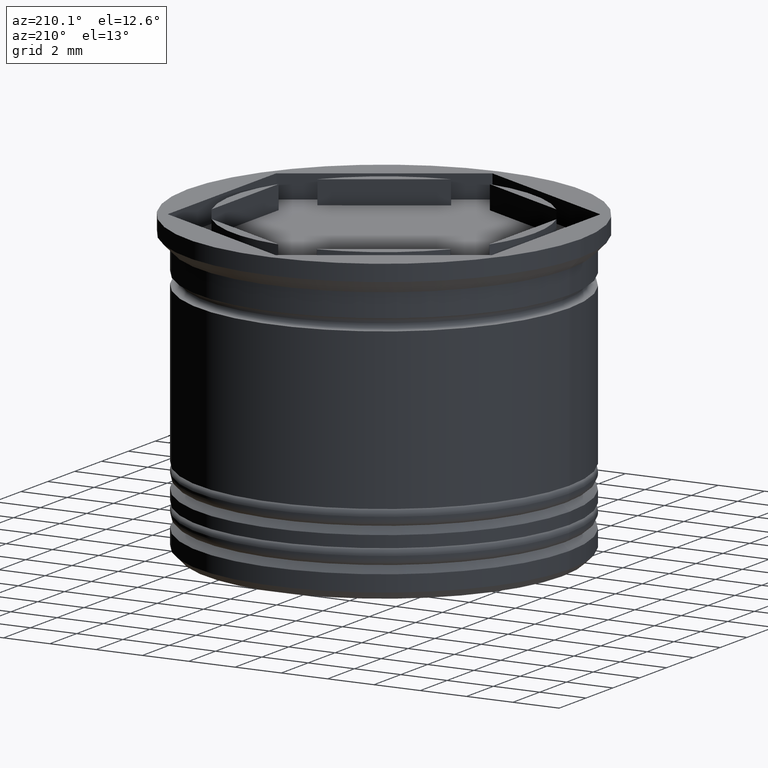
[diagram: clean part render]
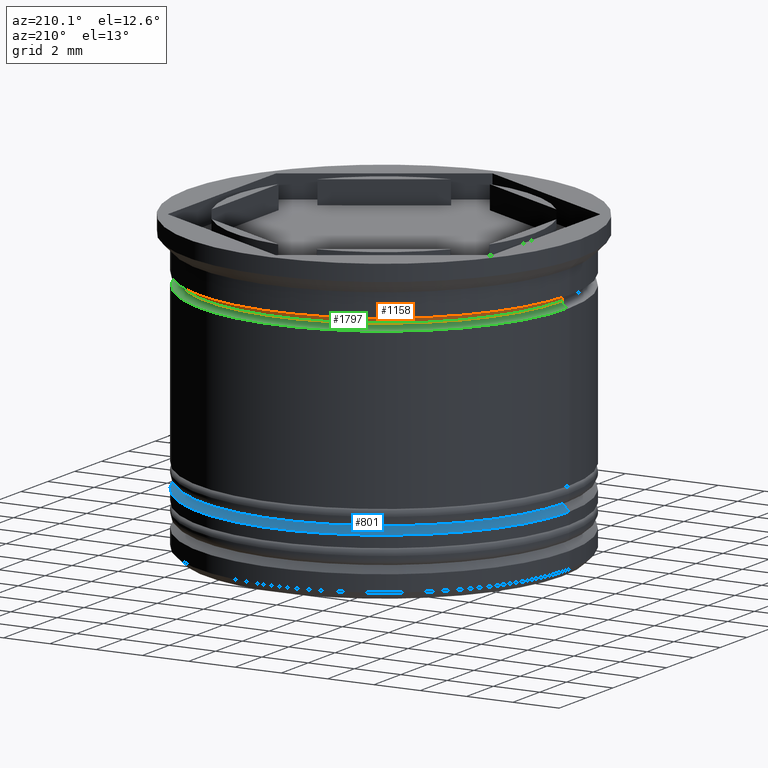
[diagram: same view with three faces highlighted in distinct colors, each labeled with its STEP entity id]
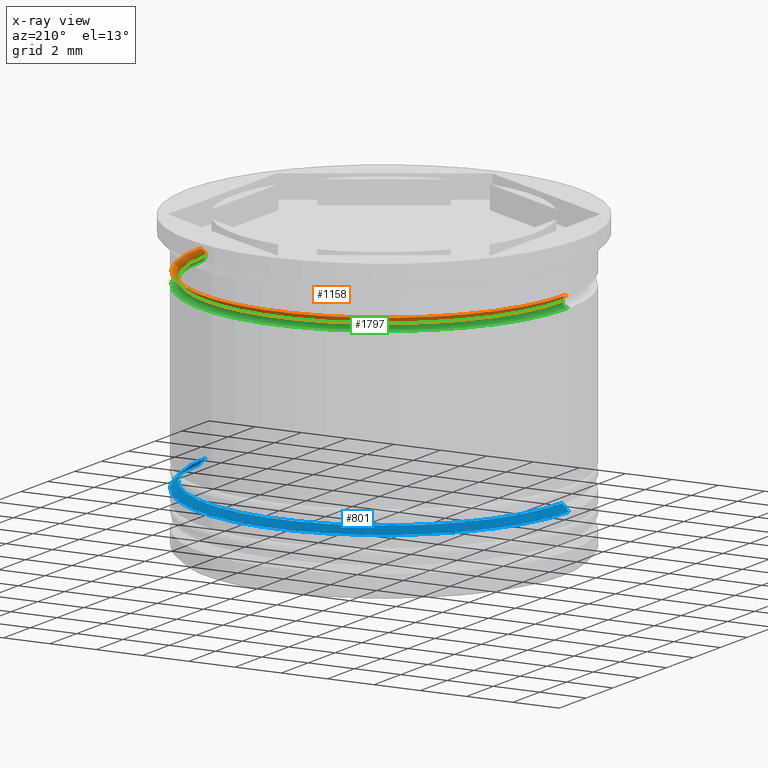
[diagram: x-ray of the same camera — body ghosted, the three highlighted faces saturated]
A machine part, auxiliary view with three faces highlighted in distinct colors.
The next image is the same camera in x-ray (body ghosted, the three faces saturated) — at least one of them is partly hidden behind the body in this view.
Their STEP definitions:

[orange] entity #1158 — the highlighted toroidal blend (fillet) surface has major radius 7.95 mm and minor (blend) radius 0.25 mm.
#46 = CIRCLE ( 'NONE', #1182, 7.700000000000001954 ) ;
#66 = DIRECTION ( 'NONE',  ( 0.000000000000000000, -1.000000000000000000, 0.000000000000000000 ) ) ;
#87 = DIRECTION ( 'NONE',  ( 1.000000000000000000, 0.000000000000000000, 0.000000000000000000 ) ) ;
#126 = DIRECTION ( 'NONE',  ( 1.000000000000000000, 0.000000000000000000, 0.000000000000000000 ) ) ;
#218 = EDGE_CURVE ( 'NONE', #1854, #510, #1303, .T. ) ;
#297 = CARTESIAN_POINT ( 'NONE',  ( -7.700000000000001954, 9.429780353434621002E-16, -2.449999999999999734 ) ) ;
#324 = ORIENTED_EDGE ( 'NONE', *, *, #1086, .F. ) ;
#330 = ORIENTED_EDGE ( 'NONE', *, *, #646, .T. ) ;
#370 = CARTESIAN_POINT ( 'NONE',  ( 0.000000000000000000, 0.000000000000000000, -2.199999999999999734 ) ) ;
#387 = FACE_OUTER_BOUND ( 'NONE', #1090, .T. ) ;
#510 = VERTEX_POINT ( 'NONE', #773 ) ;
#536 = AXIS2_PLACEMENT_3D ( 'NONE', #1896, #1118, #651 ) ;
#559 = ORIENTED_EDGE ( 'NONE', *, *, #1579, .T. ) ;
#646 = EDGE_CURVE ( 'NONE', #1854, #1262, #947, .T. ) ;
#651 = DIRECTION ( 'NONE',  ( -1.000000000000000000, 1.224646799147357151E-16, 0.000000000000000000 ) ) ;
#653 = DIRECTION ( 'NONE',  ( 0.000000000000000000, 0.000000000000000000, -1.000000000000000000 ) ) ;
#773 = CARTESIAN_POINT ( 'NONE',  ( -7.950000000000001954, 9.735942053221462816E-16, -2.199999999999999734 ) ) ;
#868 = DIRECTION ( 'NONE',  ( 1.000000000000000000, 0.000000000000000000, 0.000000000000000000 ) ) ;
#921 = AXIS2_PLACEMENT_3D ( 'NONE', #1598, #66, #653 ) ;
#947 = CIRCLE ( 'NONE', #921, 0.2500000000000006661 ) ;
#1000 = DIRECTION ( 'NONE',  ( -0.000000000000000000, -0.000000000000000000, 1.000000000000000000 ) ) ;
#1051 = AXIS2_PLACEMENT_3D ( 'NONE', #1957, #1623, #868 ) ;
#1086 = EDGE_CURVE ( 'NONE', #510, #1287, #1690, .T. ) ;
#1090 = EDGE_LOOP ( 'NONE', ( #330, #559, #324, #1331 ) ) ;
#1118 = DIRECTION ( 'NONE',  ( 1.224646799147353207E-16, 1.000000000000000000, 0.000000000000000000 ) ) ;
#1147 = CARTESIAN_POINT ( 'NONE',  ( 0.000000000000000000, 0.000000000000000000, -2.449999999999999734 ) ) ;
#1158 = ADVANCED_FACE ( 'NONE', ( #387 ), #1181, .F. ) ;
#1181 = TOROIDAL_SURFACE ( 'NONE', #1051, 7.950000000000001954, 0.2500000000000004996 ) ;
#1182 = AXIS2_PLACEMENT_3D ( 'NONE', #1147, #1000, #126 ) ;
#1262 = VERTEX_POINT ( 'NONE', #1338 ) ;
#1267 = CARTESIAN_POINT ( 'NONE',  ( 7.950000000000001954, 0.000000000000000000, -2.199999999999999734 ) ) ;
#1287 = VERTEX_POINT ( 'NONE', #297 ) ;
#1303 = CIRCLE ( 'NONE', #1813, 7.950000000000001954 ) ;
#1331 = ORIENTED_EDGE ( 'NONE', *, *, #218, .F. ) ;
#1338 = CARTESIAN_POINT ( 'NONE',  ( 7.700000000000001954, 0.000000000000000000, -2.449999999999999734 ) ) ;
#1579 = EDGE_CURVE ( 'NONE', #1262, #1287, #46, .T. ) ;
#1598 = CARTESIAN_POINT ( 'NONE',  ( 7.950000000000001954, 0.000000000000000000, -2.449999999999999734 ) ) ;
#1623 = DIRECTION ( 'NONE',  ( -0.000000000000000000, -0.000000000000000000, 1.000000000000000000 ) ) ;
#1690 = CIRCLE ( 'NONE', #536, 0.2500000000000002220 ) ;
#1735 = DIRECTION ( 'NONE',  ( -0.000000000000000000, -0.000000000000000000, 1.000000000000000000 ) ) ;
#1813 = AXIS2_PLACEMENT_3D ( 'NONE', #370, #1735, #87 ) ;
#1854 = VERTEX_POINT ( 'NONE', #1267 ) ;
#1896 = CARTESIAN_POINT ( 'NONE',  ( -7.950000000000001954, 9.735942053221460844E-16, -2.449999999999999734 ) ) ;
#1957 = CARTESIAN_POINT ( 'NONE',  ( 0.000000000000000000, 0.000000000000000000, -2.449999999999999734 ) ) ;

[blue] entity #801 — the highlighted conical surface has half-angle 45 deg.
#72 = DIRECTION ( 'NONE',  ( -1.000000000000000000, 0.000000000000000000, 0.000000000000000000 ) ) ;
#125 = DIRECTION ( 'NONE',  ( -1.000000000000000000, 0.000000000000000000, 0.000000000000000000 ) ) ;
#147 = CARTESIAN_POINT ( 'NONE',  ( 0.000000000000000000, 0.000000000000000000, -10.20000000000000817 ) ) ;
#157 = EDGE_CURVE ( 'NONE', #1529, #1002, #709, .T. ) ;
#174 = AXIS2_PLACEMENT_3D ( 'NONE', #1519, #727, #125 ) ;
#249 = CARTESIAN_POINT ( 'NONE',  ( 8.000000000000000000, 0.000000000000000000, -10.50000000000000355 ) ) ;
#323 = ORIENTED_EDGE ( 'NONE', *, *, #157, .F. ) ;
#335 = AXIS2_PLACEMENT_3D ( 'NONE', #147, #928, #1842 ) ;
#398 = ORIENTED_EDGE ( 'NONE', *, *, #1990, .F. ) ;
#456 = CARTESIAN_POINT ( 'NONE',  ( 7.499999999999991118, 9.184850993605138084E-16, -10.00000000000000000 ) ) ;
#508 = EDGE_CURVE ( 'NONE', #1096, #1529, #1103, .T. ) ;
#632 = CARTESIAN_POINT ( 'NONE',  ( -8.000000000000000000, 9.797174393178825657E-16, -10.50000000000000355 ) ) ;
#643 = LINE ( 'NONE', #456, #1944 ) ;
#709 = LINE ( 'NONE', #1900, #1970 ) ;
#727 = DIRECTION ( 'NONE',  ( 0.000000000000000000, 0.000000000000000000, -1.000000000000000000 ) ) ;
#790 = VERTEX_POINT ( 'NONE', #249 ) ;
#796 = AXIS2_PLACEMENT_3D ( 'NONE', #985, #1134, #72 ) ;
#801 = ADVANCED_FACE ( 'NONE', ( #1332 ), #887, .T. ) ;
#834 = DIRECTION ( 'NONE',  ( -0.7071067811865512365, 0.000000000000000000, -0.7071067811865439090 ) ) ;
#887 = CONICAL_SURFACE ( 'NONE', #174, 7.499999999999991118, 0.7853981633974533860 ) ;
#917 = EDGE_CURVE ( 'NONE', #1096, #790, #643, .T. ) ;
#928 = DIRECTION ( 'NONE',  ( -0.000000000000000000, -0.000000000000000000, 1.000000000000000000 ) ) ;
#985 = CARTESIAN_POINT ( 'NONE',  ( 0.000000000000000000, 0.000000000000000000, -10.50000000000000355 ) ) ;
#1002 = VERTEX_POINT ( 'NONE', #632 ) ;
#1096 = VERTEX_POINT ( 'NONE', #1129 ) ;
#1103 = CIRCLE ( 'NONE', #335, 7.700000000000000178 ) ;
#1123 = CARTESIAN_POINT ( 'NONE',  ( -7.700000000000000178, 9.429780353434619030E-16, -10.20000000000000817 ) ) ;
#1129 = CARTESIAN_POINT ( 'NONE',  ( 7.700000000000000178, 0.000000000000000000, -10.20000000000000817 ) ) ;
#1134 = DIRECTION ( 'NONE',  ( 0.000000000000000000, 0.000000000000000000, -1.000000000000000000 ) ) ;
#1332 = FACE_OUTER_BOUND ( 'NONE', #1362, .T. ) ;
#1362 = EDGE_LOOP ( 'NONE', ( #1492, #1825, #398, #323 ) ) ;
#1439 = CIRCLE ( 'NONE', #796, 8.000000000000000000 ) ;
#1492 = ORIENTED_EDGE ( 'NONE', *, *, #508, .F. ) ;
#1519 = CARTESIAN_POINT ( 'NONE',  ( 0.000000000000000000, 0.000000000000000000, -10.00000000000000000 ) ) ;
#1529 = VERTEX_POINT ( 'NONE', #1123 ) ;
#1825 = ORIENTED_EDGE ( 'NONE', *, *, #917, .T. ) ;
#1842 = DIRECTION ( 'NONE',  ( -1.000000000000000000, 0.000000000000000000, 0.000000000000000000 ) ) ;
#1856 = DIRECTION ( 'NONE',  ( 0.7071067811865512365, 8.659560562354978464E-17, -0.7071067811865439090 ) ) ;
#1900 = CARTESIAN_POINT ( 'NONE',  ( -7.499999999999991118, 0.000000000000000000, -10.00000000000000000 ) ) ;
#1944 = VECTOR ( 'NONE', #1856, 1000.000000000000000 ) ;
#1970 = VECTOR ( 'NONE', #834, 1000.000000000000000 ) ;
#1990 = EDGE_CURVE ( 'NONE', #1002, #790, #1439, .T. ) ;

[green] entity #1797 — the highlighted toroidal blend (fillet) surface has major radius 7.95 mm and minor (blend) radius 0.25 mm.
#46 = CIRCLE ( 'NONE', #1182, 7.700000000000001954 ) ;
#126 = DIRECTION ( 'NONE',  ( 1.000000000000000000, 0.000000000000000000, 0.000000000000000000 ) ) ;
#158 = EDGE_CURVE ( 'NONE', #1287, #1892, #785, .T. ) ;
#206 = DIRECTION ( 'NONE',  ( 0.000000000000000000, -1.000000000000000000, 0.000000000000000000 ) ) ;
#225 = DIRECTION ( 'NONE',  ( -1.000000000000000000, 1.224646799147357151E-16, 0.000000000000000000 ) ) ;
#297 = CARTESIAN_POINT ( 'NONE',  ( -7.700000000000001954, 9.429780353434621002E-16, -2.449999999999999734 ) ) ;
#431 = ORIENTED_EDGE ( 'NONE', *, *, #1579, .F. ) ;
#565 = AXIS2_PLACEMENT_3D ( 'NONE', #1113, #668, #225 ) ;
#644 = DIRECTION ( 'NONE',  ( 0.000000000000000000, 0.000000000000000000, -1.000000000000000000 ) ) ;
#668 = DIRECTION ( 'NONE',  ( 1.224646799147353207E-16, 1.000000000000000000, 0.000000000000000000 ) ) ;
#713 = ORIENTED_EDGE ( 'NONE', *, *, #1698, .F. ) ;
#785 = CIRCLE ( 'NONE', #565, 0.2500000000000002220 ) ;
#795 = AXIS2_PLACEMENT_3D ( 'NONE', #1588, #206, #825 ) ;
#825 = DIRECTION ( 'NONE',  ( 0.000000000000000000, 0.000000000000000000, -1.000000000000000000 ) ) ;
#964 = ORIENTED_EDGE ( 'NONE', *, *, #158, .F. ) ;
#976 = CARTESIAN_POINT ( 'NONE',  ( 0.000000000000000000, 0.000000000000000000, -2.449999999999999734 ) ) ;
#1000 = DIRECTION ( 'NONE',  ( -0.000000000000000000, -0.000000000000000000, 1.000000000000000000 ) ) ;
#1014 = CIRCLE ( 'NONE', #795, 0.2500000000000006661 ) ;
#1055 = AXIS2_PLACEMENT_3D ( 'NONE', #976, #1436, #1280 ) ;
#1113 = CARTESIAN_POINT ( 'NONE',  ( -7.950000000000001954, 9.735942053221460844E-16, -2.449999999999999734 ) ) ;
#1130 = FACE_OUTER_BOUND ( 'NONE', #1921, .T. ) ;
#1147 = CARTESIAN_POINT ( 'NONE',  ( 0.000000000000000000, 0.000000000000000000, -2.449999999999999734 ) ) ;
#1182 = AXIS2_PLACEMENT_3D ( 'NONE', #1147, #1000, #126 ) ;
#1230 = VERTEX_POINT ( 'NONE', #1922 ) ;
#1250 = DIRECTION ( 'NONE',  ( -1.000000000000000000, 0.000000000000000000, 0.000000000000000000 ) ) ;
#1262 = VERTEX_POINT ( 'NONE', #1338 ) ;
#1280 = DIRECTION ( 'NONE',  ( 1.000000000000000000, 0.000000000000000000, 0.000000000000000000 ) ) ;
#1287 = VERTEX_POINT ( 'NONE', #297 ) ;
#1313 = AXIS2_PLACEMENT_3D ( 'NONE', #1396, #644, #1250 ) ;
#1337 = ORIENTED_EDGE ( 'NONE', *, *, #1537, .T. ) ;
#1338 = CARTESIAN_POINT ( 'NONE',  ( 7.700000000000001954, 0.000000000000000000, -2.449999999999999734 ) ) ;
#1396 = CARTESIAN_POINT ( 'NONE',  ( 0.000000000000000000, 0.000000000000000000, -2.700000000000000178 ) ) ;
#1404 = CIRCLE ( 'NONE', #1313, 7.950000000000001954 ) ;
#1436 = DIRECTION ( 'NONE',  ( -0.000000000000000000, -0.000000000000000000, 1.000000000000000000 ) ) ;
#1537 = EDGE_CURVE ( 'NONE', #1262, #1230, #1014, .T. ) ;
#1542 = TOROIDAL_SURFACE ( 'NONE', #1055, 7.950000000000001954, 0.2500000000000004996 ) ;
#1579 = EDGE_CURVE ( 'NONE', #1262, #1287, #46, .T. ) ;
#1588 = CARTESIAN_POINT ( 'NONE',  ( 7.950000000000001954, 0.000000000000000000, -2.449999999999999734 ) ) ;
#1698 = EDGE_CURVE ( 'NONE', #1892, #1230, #1404, .T. ) ;
#1797 = ADVANCED_FACE ( 'NONE', ( #1130 ), #1542, .F. ) ;
#1892 = VERTEX_POINT ( 'NONE', #1933 ) ;
#1921 = EDGE_LOOP ( 'NONE', ( #431, #1337, #713, #964 ) ) ;
#1922 = CARTESIAN_POINT ( 'NONE',  ( 7.950000000000001954, 0.000000000000000000, -2.700000000000000178 ) ) ;
#1933 = CARTESIAN_POINT ( 'NONE',  ( -7.950000000000001954, 9.735942053221462816E-16, -2.700000000000000178 ) ) ;